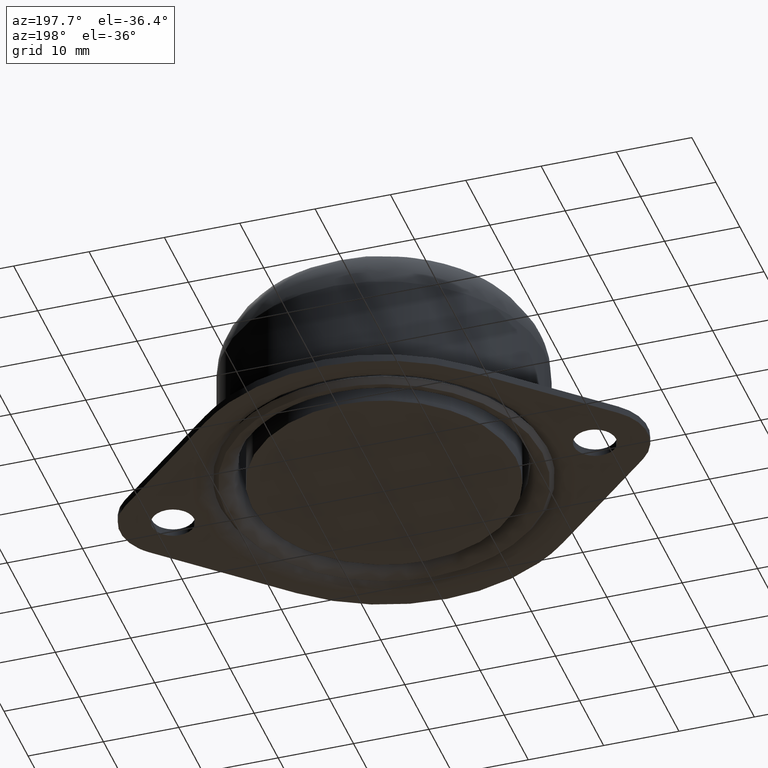
[diagram: clean part render]
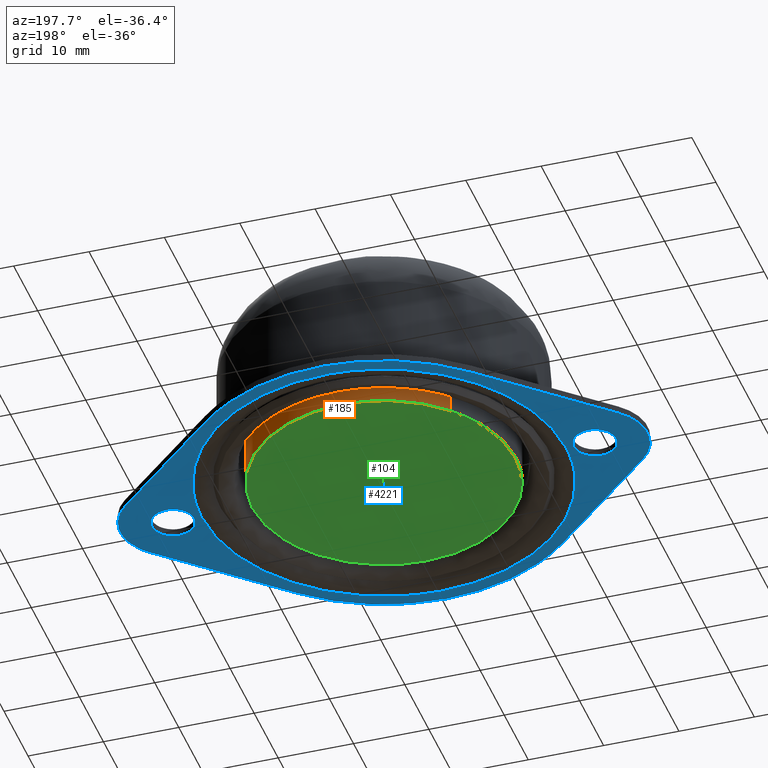
[diagram: same view with three faces highlighted in distinct colors, each labeled with its STEP entity id]
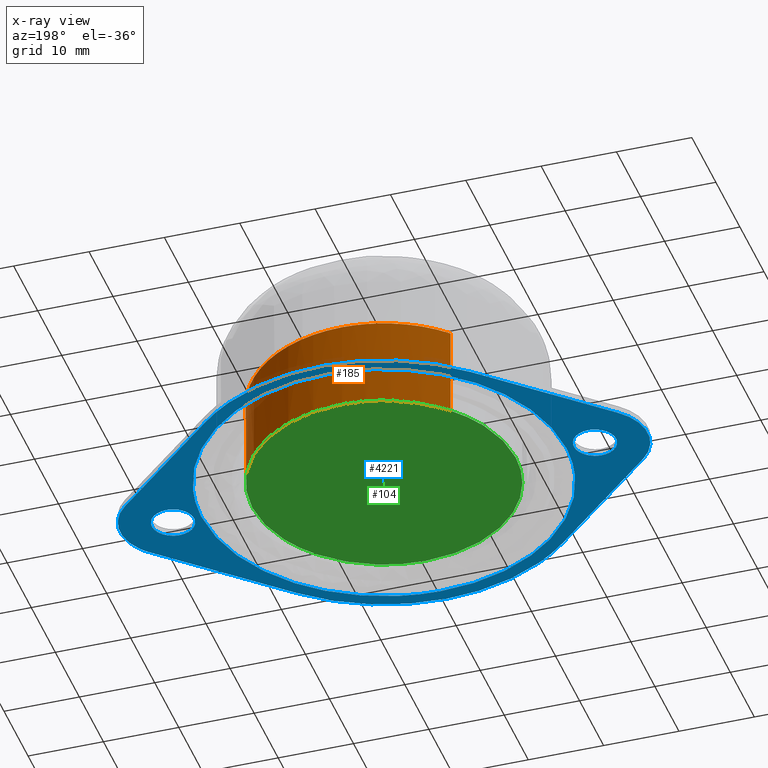
[diagram: x-ray of the same camera — body ghosted, the three highlighted faces saturated]
A machine part, auxiliary view with three faces highlighted in distinct colors.
The next image is the same camera in x-ray (body ghosted, the three faces saturated) — at least one of them is partly hidden behind the body in this view.
Their STEP definitions:

[orange] entity #185 — the highlighted face is a freeform B-spline surface patch.
#12=CARTESIAN_POINT('',(-12.694051327432490,12.046204874001370,5.828671E-016));
#13=VERTEX_POINT('',#12);
#25=CARTESIAN_POINT('',(0.000001033427138,17.499999999999972,0.0));
#26=VERTEX_POINT('',#25);
#27=CARTESIAN_POINT('',(-12.694051327432490,12.046204874001370,5.828671E-016));
#28=CARTESIAN_POINT('',(-11.752260568453350,13.039107217234010,5.396233E-016));
#29=CARTESIAN_POINT('',(-9.948859554140649,14.539835378048240,4.568174E-016));
#30=CARTESIAN_POINT('',(-7.106972295620929,16.072285787799249,3.263277E-016));
#31=CARTESIAN_POINT('',(-4.620652874274859,16.940714410751479,2.121645E-016));
#32=CARTESIAN_POINT('',(-2.256139286595328,17.403714067770341,1.035942E-016));
#33=CARTESIAN_POINT('',(-0.739717127283436,17.500021226958339,3.396531E-017));
#34=CARTESIAN_POINT('',(0.000001033427138,17.499999999999972,0.0));
#35=B_SPLINE_CURVE_WITH_KNOTS('',3,(#27,#28,#29,#30,#31,#32,#33,#34),.UNSPECIFIED.,.F.,.U.,(4,1,1,1,1,4),(0.000000011927836,4.105453774047316,6.990375922248376,9.653353046979401,11.983485024510310,14.202641538438611),.UNSPECIFIED.);
#36=EDGE_CURVE('',#13,#26,#35,.T.);
#38=CARTESIAN_POINT('',(17.500000000000000,0.0,0.0));
#39=VERTEX_POINT('',#38);
#40=CARTESIAN_POINT('',(0.000001033427138,17.499999999999972,0.0));
#41=CARTESIAN_POINT('',(1.252772707341418,17.500219680099491,0.0));
#42=CARTESIAN_POINT('',(2.934943339411730,17.318589445070529,0.0));
#43=CARTESIAN_POINT('',(5.224454752584814,16.730059737281429,0.0));
#44=CARTESIAN_POINT('',(7.146565655771744,16.035736934902939,0.0));
#45=CARTESIAN_POINT('',(9.211645343327193,14.948171580682770,0.0));
#46=CARTESIAN_POINT('',(10.926345950599170,13.708705878859449,0.0));
#47=CARTESIAN_POINT('',(12.344740718381130,12.446735459282880,0.0));
#48=CARTESIAN_POINT('',(13.508486076899750,11.178472565326890,0.0));
#49=CARTESIAN_POINT('',(14.656298320537511,9.620844931467456,0.0));
#50=CARTESIAN_POINT('',(15.708952071699850,7.827436663531470,0.0));
#51=CARTESIAN_POINT('',(16.712554314363409,5.446183268579699,0.0));
#52=CARTESIAN_POINT('',(17.360096668815871,2.756051201541911,0.0));
#53=CARTESIAN_POINT('',(17.500031975590190,0.859026314473732,0.0));
#54=CARTESIAN_POINT('',(17.500000000000000,0.0,0.0));
#55=B_SPLINE_CURVE_WITH_KNOTS('',3,(#40,#41,#42,#43,#44,#45,#46,#47,#48,#49,#50,#51,#52,#53,#54),.UNSPECIFIED.,.F.,.U.,(4,1,1,1,1,1,1,1,1,1,1,1,4),(0.000000042728939,3.758250911907684,5.046796289399147,7.087003583543876,9.878866169585820,12.026451671538760,13.422368371253549,15.569927406255470,17.180594418582650,19.220802072987770,21.797902057186018,24.911893883550160,27.488978258615141),.UNSPECIFIED.);
#56=EDGE_CURVE('',#26,#39,#55,.T.);
#58=CARTESIAN_POINT('',(12.694051327432540,-12.046204874001431,-1.387779E-016));
#59=VERTEX_POINT('',#58);
#60=CARTESIAN_POINT('',(17.500000000000000,0.0,0.0));
#61=CARTESIAN_POINT('',(17.500068162512360,-0.934198816098275,-1.076240E-017));
#62=CARTESIAN_POINT('',(17.380567280991801,-2.421966867251283,-2.790218E-017));
#63=CARTESIAN_POINT('',(16.916501264523529,-4.625141459918753,-5.328378E-017));
#64=CARTESIAN_POINT('',(16.261513535659400,-6.599753303630797,-7.603222E-017));
#65=CARTESIAN_POINT('',(15.385335928593280,-8.409912941714817,-9.688611E-017));
#66=CARTESIAN_POINT('',(14.230974684070160,-10.261173516164719,-1.182135E-016));
#67=CARTESIAN_POINT('',(13.337166314188570,-11.368610605760660,-1.309717E-016));
#68=CARTESIAN_POINT('',(12.694051327432540,-12.046204874001431,-1.387779E-016));
#69=B_SPLINE_CURVE_WITH_KNOTS('',3,(#60,#61,#62,#63,#64,#65,#66,#67,#68),.UNSPECIFIED.,.F.,.U.,(4,1,1,1,1,1,4),(0.000000010627542,2.802585769322469,4.463381717121377,6.746954955061423,9.030553493738333,10.483752518467380,13.286338277160009),.UNSPECIFIED.);
#70=EDGE_CURVE('',#39,#59,#69,.T.);
#105=CARTESIAN_POINT('',(-12.694051492715030,12.046205074640691,12.420664061481601));
#106=CARTESIAN_POINT('',(-0.647846418074339,24.740256567355722,12.420664061481595));
#107=CARTESIAN_POINT('',(12.046205074640691,12.694051492715030,12.420664061481601));
#108=CARTESIAN_POINT('',(24.740256567355722,0.647846418074339,12.420664061481595));
#109=CARTESIAN_POINT('',(12.694051492715030,-12.046205074640691,12.420664061481601));
#110=CARTESIAN_POINT('',(-12.694051492715030,12.046205074640691,-0.310516601537040));
#111=CARTESIAN_POINT('',(-0.647846418074339,24.740256567355722,-0.310516601537040));
#112=CARTESIAN_POINT('',(12.046205074640691,12.694051492715030,-0.310516601537040));
#113=CARTESIAN_POINT('',(24.740256567355722,0.647846418074339,-0.310516601537040));
#114=CARTESIAN_POINT('',(12.694051492715030,-12.046205074640691,-0.310516601537040));
#122=(BOUNDED_SURFACE()B_SPLINE_SURFACE(2,1,((#105,#110),(#106,#111),(#107,#112),(#108,#113),(#109,#114)),.UNSPECIFIED.,.F.,.F.,.U.)B_SPLINE_SURFACE_WITH_KNOTS((3,2,3),(2,2),(0.0,28.994949366116639,57.989898732233293),(0.0,12.731180663018639),.UNSPECIFIED.)GEOMETRIC_REPRESENTATION_ITEM()RATIONAL_B_SPLINE_SURFACE(((1.0,1.0),(0.707106781186548,0.707106781186548),(1.0,1.0),(0.707106781186548,0.707106781186548),(1.0,1.0)))REPRESENTATION_ITEM('')SURFACE());
#123=CARTESIAN_POINT('',(-12.694051327693220,12.046204873726619,12.117721035591090));
#124=VERTEX_POINT('',#123);
#125=CARTESIAN_POINT('',(0.000001033427138,17.499999999999972,12.117721035591799));
#126=VERTEX_POINT('',#125);
#127=CARTESIAN_POINT('',(-12.694051327693220,12.046204873726619,12.117721035591090));
#128=CARTESIAN_POINT('',(-11.828568105886569,12.958545586472260,12.117721035591090));
#129=CARTESIAN_POINT('',(-10.467007893007629,14.113799667104569,12.117721035591281));
#130=CARTESIAN_POINT('',(-8.228248704781693,15.491313931736540,12.117721035591270));
#131=CARTESIAN_POINT('',(-6.108883451037743,16.474495599448979,12.117721035591559));
#132=CARTESIAN_POINT('',(-3.254713107902874,17.292045384144739,12.117721035591600));
#133=CARTESIAN_POINT('',(-1.146577255644431,17.500151577702610,12.117721035591750));
#134=CARTESIAN_POINT('',(0.000001033427138,17.499999999999972,12.117721035591799));
#135=B_SPLINE_CURVE_WITH_KNOTS('',3,(#127,#128,#129,#130,#131,#132,#133,#134),.UNSPECIFIED.,.F.,.U.,(4,1,1,1,1,4),(0.000000011927709,3.772577794645567,5.325999208208918,7.878024945214543,10.762939649561250,14.202641538817391),.UNSPECIFIED.);
#136=EDGE_CURVE('',#124,#126,#135,.T.);
#137=ORIENTED_EDGE('',*,*,#136,.T.);
#138=CARTESIAN_POINT('',(17.500000000000000,0.0,12.117721035591799));
#139=VERTEX_POINT('',#138);
#140=CARTESIAN_POINT('',(0.000001033427138,17.499999999999972,12.117721035591799));
#141=CARTESIAN_POINT('',(1.252766037059787,17.500202968113140,12.117721035591851));
#142=CARTESIAN_POINT('',(3.579219260018999,17.249117559254039,12.117721035591741));
#143=CARTESIAN_POINT('',(6.560378233372870,16.304640666530162,12.117721035591760));
#144=CARTESIAN_POINT('',(9.091859330705638,15.030380572752049,12.117721035591870));
#145=CARTESIAN_POINT('',(11.201501580714350,13.534906971953241,12.117721035591771));
#146=CARTESIAN_POINT('',(12.927290090280680,11.861191233896889,12.117721035591810));
#147=CARTESIAN_POINT('',(14.276190097178240,10.186346232067701,12.117721035591810));
#148=CARTESIAN_POINT('',(15.273821595203049,8.610910680633639,12.117721035591689));
#149=CARTESIAN_POINT('',(16.111998459048831,6.906851367358595,12.117721035591890));
#150=CARTESIAN_POINT('',(16.736493731073431,5.226782197588787,12.117721035591780));
#151=CARTESIAN_POINT('',(17.327175943202210,2.899166122731894,12.117721035591799));
#152=CARTESIAN_POINT('',(17.500149746757209,1.145380387572148,12.117721035591810));
#153=CARTESIAN_POINT('',(17.500000000000000,0.0,12.117721035591799));
#154=B_SPLINE_CURVE_WITH_KNOTS('',3,(#140,#141,#142,#143,#144,#145,#146,#147,#148,#149,#150,#151,#152,#153),.UNSPECIFIED.,.F.,.U.,(4,1,1,1,1,1,1,1,1,1,1,4),(0.000000042728939,3.758250911907684,6.979623902986432,9.341962381888251,12.241187606077530,14.710871745039210,16.536321636131731,18.683910429791801,20.294595658058100,22.227421131201169,24.052872990432711,27.488978258615141),.UNSPECIFIED.);
#155=EDGE_CURVE('',#126,#139,#154,.T.);
#156=ORIENTED_EDGE('',*,*,#155,.T.);
#157=CARTESIAN_POINT('',(12.694051327693280,-12.046204873726669,12.117721035591090));
#158=VERTEX_POINT('',#157);
#159=CARTESIAN_POINT('',(17.500000000000000,0.0,12.117721035591799));
#160=CARTESIAN_POINT('',(17.500305731980600,-1.384021408940835,12.117721035591760));
#161=CARTESIAN_POINT('',(17.231776733268621,-3.632852231095188,12.117721035591529));
#162=CARTESIAN_POINT('',(16.391856237061798,-6.241907495474901,12.117721035591490));
#163=CARTESIAN_POINT('',(15.545583252880871,-8.101549707040428,12.117721035591300));
#164=CARTESIAN_POINT('',(14.445684189471541,-9.987936088710809,12.117721035591220));
#165=CARTESIAN_POINT('',(13.384810281809330,-11.318426463105601,12.117721035591130));
#166=CARTESIAN_POINT('',(12.694051327693280,-12.046204873726669,12.117721035591090));
#167=B_SPLINE_CURVE_WITH_KNOTS('',3,(#159,#160,#161,#162,#163,#164,#165,#166),.UNSPECIFIED.,.F.,.U.,(4,1,1,1,1,4),(0.000000010622809,4.151982605868518,6.746954954867281,8.200158782150698,10.276153789700039,13.286338276781230),.UNSPECIFIED.);
#168=EDGE_CURVE('',#139,#158,#167,.T.);
#169=ORIENTED_EDGE('',*,*,#168,.T.);
#170=CARTESIAN_POINT('',(12.694051327693280,-12.046204873726669,12.117721035591090));
#171=CARTESIAN_POINT('',(12.694051327432540,-12.046204874001431,-1.387779E-016));
#172=QUASI_UNIFORM_CURVE('',1,(#170,#171),.UNSPECIFIED.,.F.,.U.);
#173=EDGE_CURVE('',#158,#59,#172,.T.);
#174=ORIENTED_EDGE('',*,*,#173,.T.);
#175=ORIENTED_EDGE('',*,*,#70,.F.);
#176=ORIENTED_EDGE('',*,*,#56,.F.);
#177=ORIENTED_EDGE('',*,*,#36,.F.);
#178=CARTESIAN_POINT('',(-12.694051327693220,12.046204873726619,12.117721035591090));
#179=CARTESIAN_POINT('',(-12.694051327432490,12.046204874001370,5.828671E-016));
#180=QUASI_UNIFORM_CURVE('',1,(#178,#179),.UNSPECIFIED.,.F.,.U.);
#181=EDGE_CURVE('',#124,#13,#180,.T.);
#182=ORIENTED_EDGE('',*,*,#181,.F.);
#183=EDGE_LOOP('',(#137,#156,#169,#174,#175,#176,#177,#182));
#184=FACE_OUTER_BOUND('',#183,.T.);
#185=ADVANCED_FACE('',(#184),#122,.T.);

[blue] entity #4221 — the highlighted face is a freeform B-spline surface patch.
#2745=CARTESIAN_POINT('',(30.031048039653999,-1.927392715186020,1.239838E-011));
#2746=VERTEX_POINT('',#2745);
#2747=CARTESIAN_POINT('',(27.999999154508799,-2.799999999999872,0.0));
#2748=VERTEX_POINT('',#2747);
#2749=CARTESIAN_POINT('',(30.031048039653999,-1.927392715186020,1.239838E-011));
#2750=CARTESIAN_POINT('',(29.843740515910579,-2.124946597109745,1.125497E-011));
#2751=CARTESIAN_POINT('',(29.448523690532561,-2.435085087135668,8.842404E-012));
#2752=CARTESIAN_POINT('',(28.745589806583560,-2.731824886602429,4.551400E-012));
#2753=CARTESIAN_POINT('',(28.260390812198239,-2.800086189192340,1.589541E-012));
#2754=CARTESIAN_POINT('',(27.999999154508799,-2.799999999999872,0.0));
#2755=B_SPLINE_CURVE_WITH_KNOTS('',3,(#2749,#2750,#2751,#2752,#2753,#2754),.UNSPECIFIED.,.F.,.U.,(4,1,1,4),(0.000000026224772,0.816662739139582,1.491283893432271,2.272434603819845),.UNSPECIFIED.);
#2756=EDGE_CURVE('',#2746,#2748,#2755,.T.);
#2758=CARTESIAN_POINT('',(25.199999999999999,0.0,0.0));
#2759=VERTEX_POINT('',#2758);
#2760=CARTESIAN_POINT('',(27.999999154508799,-2.799999999999872,0.0));
#2761=CARTESIAN_POINT('',(27.644883335062651,-2.800350475097636,0.0));
#2762=CARTESIAN_POINT('',(27.038093452136081,-2.682910364221622,0.0));
#2763=CARTESIAN_POINT('',(26.334143108095780,-2.284055815763501,0.0));
#2764=CARTESIAN_POINT('',(25.889561434436761,-1.865861166363240,0.0));
#2765=CARTESIAN_POINT('',(25.579808203963172,-1.437277321139067,0.0));
#2766=CARTESIAN_POINT('',(25.290719681295069,-0.835977811623909,0.0));
#2767=CARTESIAN_POINT('',(25.199780233864018,-0.332192747762233,0.0));
#2768=CARTESIAN_POINT('',(25.199999999999999,0.0,0.0));
#2769=B_SPLINE_CURVE_WITH_KNOTS('',3,(#2760,#2761,#2762,#2763,#2764,#2765,#2766,#2767,#2768),.UNSPECIFIED.,.F.,.U.,(4,1,1,1,1,1,4),(0.000000098548063,1.065202498120565,1.821171744755202,2.405270912355896,2.886345147545586,3.401779459272843,4.398256835523368),.UNSPECIFIED.);
#2770=EDGE_CURVE('',#2748,#2759,#2769,.T.);
#2772=CARTESIAN_POINT('',(25.968951960346001,1.927392715186019,1.239826E-011));
#2773=VERTEX_POINT('',#2772);
#2774=CARTESIAN_POINT('',(25.199999999999999,0.0,0.0));
#2775=CARTESIAN_POINT('',(25.199991060435352,0.166078021723810,1.068323E-012));
#2776=CARTESIAN_POINT('',(25.232588271740202,0.531442820791804,3.418591E-012));
#2777=CARTESIAN_POINT('',(25.432674409727991,1.215450841064613,7.818582E-012));
#2778=CARTESIAN_POINT('',(25.732425131164529,1.678593488117422,1.079782E-011));
#2779=CARTESIAN_POINT('',(25.968951960346001,1.927392715186019,1.239826E-011));
#2780=B_SPLINE_CURVE_WITH_KNOTS('',3,(#2774,#2775,#2776,#2777,#2778,#2779),.UNSPECIFIED.,.F.,.U.,(4,1,1,4),(0.000000023949822,0.498239701473426,1.096112349535571,2.125823479901019),.UNSPECIFIED.);
#2781=EDGE_CURVE('',#2759,#2773,#2780,.T.);
#2852=CARTESIAN_POINT('',(30.800000000000001,0.0,0.0));
#2853=VERTEX_POINT('',#2852);
#2854=CARTESIAN_POINT('',(30.800000000000001,0.0,0.0));
#2855=CARTESIAN_POINT('',(30.800011651768450,-0.166078550991764,1.068337E-012));
#2856=CARTESIAN_POINT('',(30.767396664123471,-0.531437408703739,3.418588E-012));
#2857=CARTESIAN_POINT('',(30.567359776526420,-1.215466797623307,7.818757E-012));
#2858=CARTESIAN_POINT('',(30.267547100021130,-1.678578523538131,1.079783E-011));
#2859=CARTESIAN_POINT('',(30.031048039653999,-1.927392715186020,1.239838E-011));
#2860=B_SPLINE_CURVE_WITH_KNOTS('',3,(#2854,#2855,#2856,#2857,#2858,#2859),.UNSPECIFIED.,.F.,.U.,(4,1,1,4),(0.000000023951221,0.498239701474330,1.096112349535941,2.125823479901019),.UNSPECIFIED.);
#2861=EDGE_CURVE('',#2853,#2746,#2860,.T.);
#2899=CARTESIAN_POINT('',(28.000000845491218,2.799999999999872,0.0));
#2900=VERTEX_POINT('',#2899);
#2901=CARTESIAN_POINT('',(25.968951960346001,1.927392715186019,1.239826E-011));
#2902=CARTESIAN_POINT('',(26.148120549592161,2.116352447358087,1.130455E-011));
#2903=CARTESIAN_POINT('',(26.456824760195570,2.361741135176130,9.420109E-012));
#2904=CARTESIAN_POINT('',(26.987630554205101,2.626636584075357,6.179877E-012));
#2905=CARTESIAN_POINT('',(27.467396400555291,2.767354544982390,3.251212E-012));
#2906=CARTESIAN_POINT('',(27.834304449405771,2.800011759845107,1.011471E-012));
#2907=CARTESIAN_POINT('',(28.000000845491218,2.799999999999872,0.0));
#2908=B_SPLINE_CURVE_WITH_KNOTS('',3,(#2901,#2902,#2903,#2904,#2905,#2906,#2907),.UNSPECIFIED.,.F.,.U.,(4,1,1,1,4),(0.000000026225792,0.781150338729053,1.171709510278310,1.775341132132759,2.272434603819858),.UNSPECIFIED.);
#2909=EDGE_CURVE('',#2773,#2900,#2908,.T.);
#2911=CARTESIAN_POINT('',(28.000000845491218,2.799999999999872,0.0));
#2912=CARTESIAN_POINT('',(28.274899713935561,2.800108221946402,0.0));
#2913=CARTESIAN_POINT('',(28.801701544830479,2.721782682552250,0.0));
#2914=CARTESIAN_POINT('',(29.547877516524721,2.380123426296433,0.0));
#2915=CARTESIAN_POINT('',(30.071579082011819,1.922719231740108,0.0));
#2916=CARTESIAN_POINT('',(30.438536831968548,1.408186841094348,0.0));
#2917=CARTESIAN_POINT('',(30.715611340586388,0.813106063968280,0.0));
#2918=CARTESIAN_POINT('',(30.800208439692899,0.309278637945049,0.0));
#2919=CARTESIAN_POINT('',(30.800000000000001,0.0,0.0));
#2920=B_SPLINE_CURVE_WITH_KNOTS('',3,(#2911,#2912,#2913,#2914,#2915,#2916,#2917,#2918,#2919),.UNSPECIFIED.,.F.,.U.,(4,1,1,1,1,1,4),(0.000000098573376,0.824665699015917,1.580635255141353,2.439657106825410,2.886345147554612,3.470503028095011,4.398256835523259),.UNSPECIFIED.);
#2921=EDGE_CURVE('',#2900,#2853,#2920,.T.);
#2944=CARTESIAN_POINT('',(-25.968951960346001,-1.927392715186022,1.239838E-011));
#2945=VERTEX_POINT('',#2944);
#2946=CARTESIAN_POINT('',(-28.000000845491201,-2.799999999999872,0.0));
#2947=VERTEX_POINT('',#2946);
#2948=CARTESIAN_POINT('',(-25.968951960346001,-1.927392715186022,1.239838E-011));
#2949=CARTESIAN_POINT('',(-26.083003341023058,-2.047590196936136,1.170216E-011));
#2950=CARTESIAN_POINT('',(-26.359249074610371,-2.291264282499584,1.001584E-011));
#2951=CARTESIAN_POINT('',(-26.791577391536169,-2.542401610766930,7.376726E-012));
#2952=CARTESIAN_POINT('',(-27.349104281413169,-2.745093363348257,3.973347E-012));
#2953=CARTESIAN_POINT('',(-27.739603052787221,-2.800111691537663,1.589578E-012));
#2954=CARTESIAN_POINT('',(-28.000000845491201,-2.799999999999872,0.0));
#2955=B_SPLINE_CURVE_WITH_KNOTS('',3,(#2948,#2949,#2950,#2951,#2952,#2953,#2954),.UNSPECIFIED.,.F.,.U.,(4,1,1,1,4),(0.000000026222973,0.497093717521525,1.100725022460585,1.491283893432272,2.272434603819845),.UNSPECIFIED.);
#2956=EDGE_CURVE('',#2945,#2947,#2955,.T.);
#2958=CARTESIAN_POINT('',(-30.800000000000001,0.0,0.0));
#2959=VERTEX_POINT('',#2958);
#2960=CARTESIAN_POINT('',(-28.000000845491201,-2.799999999999872,0.0));
#2961=CARTESIAN_POINT('',(-28.355119487596269,-2.800351157323797,0.0));
#2962=CARTESIAN_POINT('',(-28.961893965066800,-2.682897841856384,0.0));
#2963=CARTESIAN_POINT('',(-29.736292755341889,-2.244208654907654,0.0));
#2964=CARTESIAN_POINT('',(-30.237625426202769,-1.730423854099129,0.0));
#2965=CARTESIAN_POINT('',(-30.556273996539410,-1.183454946457047,0.0));
#2966=CARTESIAN_POINT('',(-30.750513241014559,-0.629925620482051,0.0));
#2967=CARTESIAN_POINT('',(-30.800060054805819,-0.229077006390447,0.0));
#2968=CARTESIAN_POINT('',(-30.800000000000001,0.0,0.0));
#2969=B_SPLINE_CURVE_WITH_KNOTS('',3,(#2960,#2961,#2962,#2963,#2964,#2965,#2966,#2967,#2968),.UNSPECIFIED.,.F.,.U.,(4,1,1,1,1,1,4),(0.000000098570556,1.065202498139127,1.821171744770200,2.645807579460606,3.195605844278639,3.711040155849163,4.398256835523267),.UNSPECIFIED.);
#2970=EDGE_CURVE('',#2947,#2959,#2969,.T.);
#2972=CARTESIAN_POINT('',(-30.031048039653999,1.927392715186018,1.239838E-011));
#2973=VERTEX_POINT('',#2972);
#2974=CARTESIAN_POINT('',(-30.800000000000001,0.0,0.0));
#2975=CARTESIAN_POINT('',(-30.800018109811869,0.188221688338830,1.210777E-012));
#2976=CARTESIAN_POINT('',(-30.757445649189080,0.608955522340540,3.917240E-012));
#2977=CARTESIAN_POINT('',(-30.528665356054908,1.285427458173213,8.268795E-012));
#2978=CARTESIAN_POINT('',(-30.229296008810980,1.718653992274438,1.105562E-011));
#2979=CARTESIAN_POINT('',(-30.031048039653999,1.927392715186018,1.239838E-011));
#2980=B_SPLINE_CURVE_WITH_KNOTS('',3,(#2974,#2975,#2976,#2977,#2978,#2979),.UNSPECIFIED.,.F.,.U.,(4,1,1,4),(0.000000023949207,0.564672074401947,1.262201367905090,2.125823479901017),.UNSPECIFIED.);
#2981=EDGE_CURVE('',#2959,#2973,#2980,.T.);
#3053=CARTESIAN_POINT('',(-25.199999999999999,0.0,0.0));
#3054=VERTEX_POINT('',#3053);
#3055=CARTESIAN_POINT('',(-25.199999999999999,0.0,0.0));
#3056=CARTESIAN_POINT('',(-25.199975822922841,-0.188224955851062,1.210798E-012));
#3057=CARTESIAN_POINT('',(-25.238099659955829,-0.564655765160104,3.632272E-012));
#3058=CARTESIAN_POINT('',(-25.450217870622868,-1.244566125362911,8.005945E-012));
#3059=CARTESIAN_POINT('',(-25.740067838426040,-1.686616489015955,1.084953E-011));
#3060=CARTESIAN_POINT('',(-25.968951960346001,-1.927392715186022,1.239838E-011));
#3061=B_SPLINE_CURVE_WITH_KNOTS('',3,(#3055,#3056,#3057,#3058,#3059,#3060),.UNSPECIFIED.,.F.,.U.,(4,1,1,4),(0.000000023949753,0.564672074402416,1.129340220618033,2.125823479901022),.UNSPECIFIED.);
#3062=EDGE_CURVE('',#3054,#2945,#3061,.T.);
#3100=CARTESIAN_POINT('',(-27.999999154508789,2.799999999999872,0.0));
#3101=VERTEX_POINT('',#3100);
#3102=CARTESIAN_POINT('',(-30.031048039653999,1.927392715186018,1.239838E-011));
#3103=CARTESIAN_POINT('',(-29.868150298986730,2.099145294745589,1.140398E-011));
#3104=CARTESIAN_POINT('',(-29.535401577656689,2.370714925235468,9.372743E-012));
#3105=CARTESIAN_POINT('',(-28.851997877886799,2.706400653001903,5.200959E-012));
#3106=CARTESIAN_POINT('',(-28.331443175171270,2.800277964099223,2.023274E-012));
#3107=CARTESIAN_POINT('',(-27.999999154508789,2.799999999999872,0.0));
#3108=B_SPLINE_CURVE_WITH_KNOTS('',3,(#3102,#3103,#3104,#3105,#3106,#3107),.UNSPECIFIED.,.F.,.U.,(4,1,1,4),(0.000000026223574,0.710137817113629,1.278233098241917,2.272434603819857),.UNSPECIFIED.);
#3109=EDGE_CURVE('',#2973,#3101,#3108,.T.);
#3111=CARTESIAN_POINT('',(-27.999999154508789,2.799999999999872,0.0));
#3112=CARTESIAN_POINT('',(-27.690724252621528,2.800189119311187,0.0));
#3113=CARTESIAN_POINT('',(-27.141079284342240,2.707959491169661,0.0));
#3114=CARTESIAN_POINT('',(-26.437424074776199,2.359173435847647,0.0));
#3115=CARTESIAN_POINT('',(-25.939381920456430,1.929483463386294,0.0));
#3116=CARTESIAN_POINT('',(-25.562300418716742,1.421052165552399,0.0));
#3117=CARTESIAN_POINT('',(-25.277986109779619,0.790245299074178,0.0));
#3118=CARTESIAN_POINT('',(-25.199874964057280,0.286353944472991,0.0));
#3119=CARTESIAN_POINT('',(-25.199999999999999,0.0,0.0));
#3120=B_SPLINE_CURVE_WITH_KNOTS('',3,(#3111,#3112,#3113,#3114,#3115,#3116,#3117,#3118,#3119),.UNSPECIFIED.,.F.,.U.,(4,1,1,1,1,1,4),(0.000000098548110,0.927756297414711,1.649354845515874,2.336550673854224,2.886345147545901,3.539225127852387,4.398256835523361),.UNSPECIFIED.);
#3121=EDGE_CURVE('',#3101,#3054,#3120,.T.);
#3700=CARTESIAN_POINT('',(-24.192352355895931,-0.608134940985664,7.180680E-012));
#3701=VERTEX_POINT('',#3700);
#3702=CARTESIAN_POINT('',(-24.199999999999999,0.0,0.0));
#3703=VERTEX_POINT('',#3702);
#3704=CARTESIAN_POINT('',(-24.192352355895931,-0.608134940985664,7.180680E-012));
#3705=CARTESIAN_POINT('',(-24.197448742052160,-0.405467626336486,4.787265E-012));
#3706=CARTESIAN_POINT('',(-24.199998257179431,-0.202731789127019,2.393420E-012));
#3707=CARTESIAN_POINT('',(-24.199999999999999,0.0,0.0));
#3708=B_SPLINE_CURVE_WITH_KNOTS('',3,(#3704,#3705,#3706,#3707),.UNSPECIFIED.,.F.,.U.,(4,4),(9.873158E-012,0.608200032547265),.UNSPECIFIED.);
#3709=EDGE_CURVE('',#3701,#3703,#3708,.T.);
#3711=CARTESIAN_POINT('',(-0.304077431244649,24.198089496612301,3.590374E-012));
#3712=VERTEX_POINT('',#3711);
#3713=CARTESIAN_POINT('',(-24.199999999999999,0.0,0.0));
#3714=CARTESIAN_POINT('',(-24.200156343858080,1.473025898344672,2.723166E-015));
#3715=CARTESIAN_POINT('',(-23.993110660223991,3.731585266079701,3.765191E-014));
#3716=CARTESIAN_POINT('',(-23.238036543260019,6.937510377774040,1.556538E-013));
#3717=CARTESIAN_POINT('',(-22.275906678746040,9.624082934089822,3.034067E-013));
#3718=CARTESIAN_POINT('',(-20.777912061316769,12.560530425096861,5.311277E-013));
#3719=CARTESIAN_POINT('',(-18.883216469426120,15.261503299117360,8.172652E-013));
#3720=CARTESIAN_POINT('',(-16.464049316075940,17.849309073328030,1.181004E-012));
#3721=CARTESIAN_POINT('',(-13.928267639997330,19.883349031369409,1.561011E-012));
#3722=CARTESIAN_POINT('',(-11.269124531270700,21.473884064104880,1.958493E-012));
#3723=CARTESIAN_POINT('',(-8.941098389977075,22.531635479360201,2.305857E-012));
#3724=CARTESIAN_POINT('',(-6.380167968093918,23.397525878753591,2.687417E-012));
#3725=CARTESIAN_POINT('',(-3.542620939811005,24.012497854689698,3.109550E-012));
#3726=CARTESIAN_POINT('',(-1.384200319135533,24.184560120599290,3.430099E-012));
#3727=CARTESIAN_POINT('',(-0.304077431244649,24.198089496612301,3.590374E-012));
#3728=B_SPLINE_CURVE_WITH_KNOTS('',3,(#3713,#3714,#3715,#3716,#3717,#3718,#3719,#3720,#3721,#3722,#3723,#3724,#3725,#3726,#3727),.UNSPECIFIED.,.F.,.U.,(4,1,1,1,1,1,1,1,1,1,1,1,4),(0.000000027844123,4.419043344339876,6.775879425266300,9.869218045061555,12.962566316563869,16.645118915805039,19.738426036513768,23.568278157147780,26.367007611060480,29.018444964098119,31.227974385950368,34.468622362439547,37.709244984538742),.UNSPECIFIED.);
#3729=EDGE_CURVE('',#3703,#3712,#3728,.T.);
#3731=CARTESIAN_POINT('',(24.192352355895920,0.608134940985659,7.180743E-012));
#3732=VERTEX_POINT('',#3731);
#3733=CARTESIAN_POINT('',(-0.304077431244649,24.198089496612301,3.590374E-012));
#3734=CARTESIAN_POINT('',(0.874237108919771,24.212961246541539,3.765219E-012));
#3735=CARTESIAN_POINT('',(2.889029981023403,24.090854392536329,4.063911E-012));
#3736=CARTESIAN_POINT('',(5.740198277075834,23.556520326848720,4.485921E-012));
#3737=CARTESIAN_POINT('',(8.518880498207265,22.722000930622851,4.896618E-012));
#3738=CARTESIAN_POINT('',(11.216519963282540,21.518591822878619,5.294602E-012));
#3739=CARTESIAN_POINT('',(14.155737124742121,19.726996315711499,5.727332E-012));
#3740=CARTESIAN_POINT('',(16.593283478861039,17.725762977494352,6.085241E-012));
#3741=CARTESIAN_POINT('',(18.889569599792232,15.227809508305500,6.421266E-012));
#3742=CARTESIAN_POINT('',(20.630713500532970,12.781736200640941,6.675026E-012));
#3743=CARTESIAN_POINT('',(21.990758693438270,10.217819560427060,6.872025E-012));
#3744=CARTESIAN_POINT('',(23.061655602493278,7.522389432385106,7.025881E-012));
#3745=CARTESIAN_POINT('',(23.895162694978570,4.382562101182305,7.143688E-012));
#3746=CARTESIAN_POINT('',(24.159141215914499,1.933432542296620,7.178286E-012));
#3747=CARTESIAN_POINT('',(24.192352355895920,0.608134940985659,7.180743E-012));
#3748=B_SPLINE_CURVE_WITH_KNOTS('',3,(#3733,#3734,#3735,#3736,#3737,#3738,#3739,#3740,#3741,#3742,#3743,#3744,#3745,#3746,#3747),.UNSPECIFIED.,.F.,.U.,(4,1,1,1,1,1,1,1,1,1,1,1,4),(0.000000027841899,3.535220301395277,6.039365114379031,8.690792748934438,12.226044094763880,14.877466432178080,19.001889195204122,21.653313042404481,25.041273407908879,27.987305647364920,30.344131909746320,33.732085142948463,37.709211460138491),.UNSPECIFIED.);
#3749=EDGE_CURVE('',#3712,#3732,#3748,.T.);
#3814=CARTESIAN_POINT('',(24.199999999999999,0.0,0.0));
#3815=VERTEX_POINT('',#3814);
#3816=CARTESIAN_POINT('',(0.304077431244664,-24.198089496612301,3.590342E-012));
#3817=VERTEX_POINT('',#3816);
#3818=CARTESIAN_POINT('',(24.199999999999999,0.0,0.0));
#3819=CARTESIAN_POINT('',(24.200157077520391,-1.473023551208348,2.723029E-015));
#3820=CARTESIAN_POINT('',(23.970626485300510,-3.977089513576896,4.144508E-014));
#3821=CARTESIAN_POINT('',(23.142141925621502,-7.269307222800328,1.704981E-013));
#3822=CARTESIAN_POINT('',(21.983101377834121,-10.300814038919009,3.481067E-013));
#3823=CARTESIAN_POINT('',(20.512858361709299,-12.978200334610730,5.712255E-013));
#3824=CARTESIAN_POINT('',(18.468376344508961,-15.746794814785121,8.797090E-013));
#3825=CARTESIAN_POINT('',(16.280903200982401,-18.016540651874610,1.208477E-012));
#3826=CARTESIAN_POINT('',(13.678345286167101,-20.039745011634508,1.598367E-012));
#3827=CARTESIAN_POINT('',(11.267689403217879,-21.471764916743631,1.958685E-012));
#3828=CARTESIAN_POINT('',(8.671861456132024,-22.651222935514831,2.346004E-012));
#3829=CARTESIAN_POINT('',(6.282375884716601,-23.418788724700459,2.701942E-012));
#3830=CARTESIAN_POINT('',(3.395347783627090,-24.016957782556108,3.131380E-012));
#3831=CARTESIAN_POINT('',(1.531492970542925,-24.182734737404040,3.408213E-012));
#3832=CARTESIAN_POINT('',(0.304077431244664,-24.198089496612301,3.590342E-012));
#3833=B_SPLINE_CURVE_WITH_KNOTS('',3,(#3818,#3819,#3820,#3821,#3822,#3823,#3824,#3825,#3826,#3827,#3828,#3829,#3830,#3831,#3832),.UNSPECIFIED.,.F.,.U.,(4,1,1,1,1,1,1,1,1,1,1,1,4),(0.000000027837302,4.419043344333986,7.512388184283399,10.163822782378480,14.140972206453361,16.645118915801699,20.474939469452000,23.568278157146509,26.514313180775211,28.871141804200121,32.111790410251800,34.026719001949289,37.709244984538742),.UNSPECIFIED.);
#3834=EDGE_CURVE('',#3815,#3817,#3833,.T.);
#3836=CARTESIAN_POINT('',(0.304077431244664,-24.198089496612301,3.590342E-012));
#3837=CARTESIAN_POINT('',(-1.463416571102432,-24.220631602714079,3.852612E-012));
#3838=CARTESIAN_POINT('',(-4.609827169957560,-23.913933392783989,4.318845E-012));
#3839=CARTESIAN_POINT('',(-8.527073823970465,-22.737318467320499,4.897819E-012));
#3840=CARTESIAN_POINT('',(-11.783341747607491,-21.224890926527021,5.378103E-012));
#3841=CARTESIAN_POINT('',(-14.227113672655600,-19.652383439390800,5.737732E-012));
#3842=CARTESIAN_POINT('',(-16.645855554055920,-17.641784809018990,6.092831E-012));
#3843=CARTESIAN_POINT('',(-18.718350001279280,-15.468431728865880,6.396256E-012));
#3844=CARTESIAN_POINT('',(-20.602165007415540,-12.821832513005971,6.670807E-012));
#3845=CARTESIAN_POINT('',(-21.877027188632258,-10.436034480813211,6.855499E-012));
#3846=CARTESIAN_POINT('',(-22.988436566528591,-7.758311698422048,7.015396E-012));
#3847=CARTESIAN_POINT('',(-23.874078192484280,-4.578503229475410,7.140863E-012));
#3848=CARTESIAN_POINT('',(-24.159134053855290,-1.933429736567876,7.178222E-012));
#3849=CARTESIAN_POINT('',(-24.192352355895931,-0.608134940985664,7.180680E-012));
#3850=B_SPLINE_CURVE_WITH_KNOTS('',3,(#3836,#3837,#3838,#3839,#3840,#3841,#3842,#3843,#3844,#3845,#3846,#3847,#3848,#3849),.UNSPECIFIED.,.F.,.U.,(4,1,1,1,1,1,1,1,1,1,1,4),(0.000000027847257,5.302856339912573,9.427303299211133,12.226044094767150,16.055898788972922,18.118111518380619,21.653313042405639,25.041273407909198,27.840003125594802,29.754928940119719,33.732085142948542,37.709211460138548),.UNSPECIFIED.);
#3851=EDGE_CURVE('',#3817,#3701,#3850,.T.);
#3859=CARTESIAN_POINT('',(24.192352355895920,0.608134940985659,7.180743E-012));
#3860=CARTESIAN_POINT('',(24.197448742052149,0.405467626336482,4.787307E-012));
#3861=CARTESIAN_POINT('',(24.199998257179459,0.202731789127017,2.393441E-012));
#3862=CARTESIAN_POINT('',(24.199999999999999,0.0,0.0));
#3863=B_SPLINE_CURVE_WITH_KNOTS('',3,(#3859,#3860,#3861,#3862),.UNSPECIFIED.,.F.,.U.,(4,4),(9.873158E-012,0.608200032547260),.UNSPECIFIED.);
#3864=EDGE_CURVE('',#3732,#3815,#3863,.T.);
#3885=CARTESIAN_POINT('',(17.642862538960550,19.097889973275649,0.0));
#3886=VERTEX_POINT('',#3885);
#3892=CARTESIAN_POINT('',(-17.642862538960451,19.097889973275748,0.0));
#3893=VERTEX_POINT('',#3892);
#3894=CARTESIAN_POINT('',(-17.642862538960451,19.097889973275748,0.0));
#3895=CARTESIAN_POINT('',(-16.715592171591531,19.954602267866441,0.0));
#3896=CARTESIAN_POINT('',(-15.211019245065261,21.153795142941242,0.0));
#3897=CARTESIAN_POINT('',(-12.688513824392800,22.743273507204378,0.0));
#3898=CARTESIAN_POINT('',(-10.018137139526409,24.077097075744870,0.0));
#3899=CARTESIAN_POINT('',(-6.472579615270991,25.288487203257070,0.0));
#3900=CARTESIAN_POINT('',(-2.880209958246315,25.922849025557500,0.0));
#3901=CARTESIAN_POINT('',(0.657538192900724,26.056869761589589,0.0));
#3902=CARTESIAN_POINT('',(3.683383586305125,25.800605256066870,0.0));
#3903=CARTESIAN_POINT('',(6.803131124739315,25.155413646445510,0.0));
#3904=CARTESIAN_POINT('',(9.780726152670566,24.167147652116839,0.0));
#3905=CARTESIAN_POINT('',(12.744335240580851,22.740467092307171,0.0));
#3906=CARTESIAN_POINT('',(15.378464743154140,21.037389812651661,0.0));
#3907=CARTESIAN_POINT('',(16.938123359697169,19.748963443505481,0.0));
#3908=CARTESIAN_POINT('',(17.642862538960550,19.097889973275649,0.0));
#3909=B_SPLINE_CURVE_WITH_KNOTS('',3,(#3894,#3895,#3896,#3897,#3898,#3899,#3900,#3901,#3902,#3903,#3904,#3905,#3906,#3907,#3908),.UNSPECIFIED.,.F.,.U.,(4,1,1,1,1,1,1,1,1,1,1,1,4),(0.000000025827376,3.787350321160893,5.756766502156282,8.938154413641204,12.725517876089670,16.967347548461319,19.845704483380612,23.330095557869381,26.056987023858539,29.389866048282428,32.722748703832380,35.904135245597161,38.782502414946137),.UNSPECIFIED.);
#3910=EDGE_CURVE('',#3893,#3886,#3909,.T.);
#3944=CARTESIAN_POINT('',(32.743372164830006,-5.147855913476600,0.0));
#3945=VERTEX_POINT('',#3944);
#3946=CARTESIAN_POINT('',(17.642862538960451,-19.097889973275699,0.0));
#3947=VERTEX_POINT('',#3946);
#3948=CARTESIAN_POINT('',(32.743372164830006,-5.147855913476600,0.0));
#3949=CARTESIAN_POINT('',(17.642862538960451,-19.097889973275699,0.0));
#3950=QUASI_UNIFORM_CURVE('',1,(#3948,#3949),.UNSPECIFIED.,.F.,.U.);
#3951=EDGE_CURVE('',#3945,#3947,#3950,.T.);
#3989=CARTESIAN_POINT('',(32.743372164830006,5.147855913476600,0.0));
#3990=VERTEX_POINT('',#3989);
#3991=CARTESIAN_POINT('',(32.743372164830006,5.147855913476600,0.0));
#3992=CARTESIAN_POINT('',(33.075713497916347,4.841699382479069,0.0));
#3993=CARTESIAN_POINT('',(33.660606793956042,4.187277219716357,0.0));
#3994=CARTESIAN_POINT('',(34.284976987699856,3.150925471555425,0.0));
#3995=CARTESIAN_POINT('',(34.756526215758953,1.973387346653551,0.0));
#3996=CARTESIAN_POINT('',(35.009547555739033,0.725951295305641,0.0));
#3997=CARTESIAN_POINT('',(35.009503497355468,-0.635197944729863,0.0));
#3998=CARTESIAN_POINT('',(34.802863852995827,-1.765868070932626,0.0));
#3999=CARTESIAN_POINT('',(34.444861965453399,-2.791958887340436,0.0));
#4000=CARTESIAN_POINT('',(33.847640407970047,-3.945824375023452,0.0));
#4001=CARTESIAN_POINT('',(33.208756692226792,-4.719321332746384,0.0));
#4002=CARTESIAN_POINT('',(32.743372164830006,-5.147855913476600,0.0));
#4003=B_SPLINE_CURVE_WITH_KNOTS('',3,(#3991,#3992,#3993,#3994,#3995,#3996,#3997,#3998,#3999,#4000,#4001,#4002),.UNSPECIFIED.,.F.,.U.,(4,1,1,1,1,1,1,1,1,4),(0.000000030388943,1.355596464644311,2.620835819374671,3.614957713572954,5.151330173603271,6.416509622613790,7.681756339313444,8.585505286060290,9.670004131046710,11.567840305860731),.UNSPECIFIED.);
#4004=EDGE_CURVE('',#3990,#3945,#4003,.T.);
#4037=CARTESIAN_POINT('',(17.642862538960550,19.097889973275649,0.0));
#4038=CARTESIAN_POINT('',(32.743372164830006,5.147855913476600,0.0));
#4039=QUASI_UNIFORM_CURVE('',1,(#4037,#4038),.UNSPECIFIED.,.F.,.U.);
#4040=EDGE_CURVE('',#3886,#3990,#4039,.T.);
#4057=CARTESIAN_POINT('',(-32.743372164830006,-5.147855913476609,0.0));
#4058=VERTEX_POINT('',#4057);
#4059=CARTESIAN_POINT('',(-17.642862538959651,-19.097889973274999,0.0));
#4060=VERTEX_POINT('',#4059);
#4061=CARTESIAN_POINT('',(-32.743372164830006,-5.147855913476609,0.0));
#4062=CARTESIAN_POINT('',(-17.642862538959651,-19.097889973274999,0.0));
#4063=QUASI_UNIFORM_CURVE('',1,(#4061,#4062),.UNSPECIFIED.,.F.,.U.);
#4064=EDGE_CURVE('',#4058,#4060,#4063,.T.);
#4102=CARTESIAN_POINT('',(-32.743372164830006,5.147855913476589,0.0));
#4103=VERTEX_POINT('',#4102);
#4104=CARTESIAN_POINT('',(-32.743372164830006,-5.147855913476609,0.0));
#4105=CARTESIAN_POINT('',(-33.031390047360318,-4.882505509722552,0.0));
#4106=CARTESIAN_POINT('',(-33.542262133043081,-4.325566626533031,0.0));
#4107=CARTESIAN_POINT('',(-34.238818680734347,-3.264778578627568,0.0));
#4108=CARTESIAN_POINT('',(-34.797024432626287,-1.921432968777148,0.0));
#4109=CARTESIAN_POINT('',(-35.050621297378093,-0.363654736635482,0.0));
#4110=CARTESIAN_POINT('',(-34.954795120030269,1.117248191653496,0.0));
#4111=CARTESIAN_POINT('',(-34.661246999697347,2.228527893910920,0.0));
#4112=CARTESIAN_POINT('',(-34.214672051228902,3.284235972591130,0.0));
#4113=CARTESIAN_POINT('',(-33.624052928076807,4.236486797370821,0.0));
#4114=CARTESIAN_POINT('',(-33.031379657132703,4.882504164042999,0.0));
#4115=CARTESIAN_POINT('',(-32.743372164830006,5.147855913476589,0.0));
#4116=B_SPLINE_CURVE_WITH_KNOTS('',3,(#4104,#4105,#4106,#4107,#4108,#4109,#4110,#4111,#4112,#4113,#4114,#4115),.UNSPECIFIED.,.F.,.U.,(4,1,1,1,1,1,1,1,1,4),(0.000000030390131,1.174858674964666,2.259343193586622,3.795709068185587,5.512815517910916,6.958768224849187,8.224010323033713,8.947004110289930,10.392992245513540,11.567840305860731),.UNSPECIFIED.);
#4117=EDGE_CURVE('',#4058,#4103,#4116,.T.);
#4150=CARTESIAN_POINT('',(-17.642862538960451,19.097889973275748,0.0));
#4151=CARTESIAN_POINT('',(-32.743372164830006,5.147855913476589,0.0));
#4152=QUASI_UNIFORM_CURVE('',1,(#4150,#4151),.UNSPECIFIED.,.F.,.U.);
#4153=EDGE_CURVE('',#3893,#4103,#4152,.T.);
#4165=CARTESIAN_POINT('',(38.496506778672341,-28.597372213708159,0.0));
#4166=CARTESIAN_POINT('',(-38.496523050740358,-28.597372213708159,0.0));
#4167=CARTESIAN_POINT('',(38.496506778672341,28.597423354493380,0.0));
#4168=CARTESIAN_POINT('',(-38.496523050740372,28.597423354493380,0.0));
#4169=B_SPLINE_SURFACE_WITH_KNOTS('',1,1,((#4165,#4167),(#4166,#4168)),.UNSPECIFIED.,.F.,.F.,.U.,(2,2),(2,2),(0.0,76.993029829412706),(0.0,57.194795568201542),.UNSPECIFIED.);
#4170=ORIENTED_EDGE('',*,*,#3910,.T.);
#4171=ORIENTED_EDGE('',*,*,#4040,.T.);
#4172=ORIENTED_EDGE('',*,*,#4004,.T.);
#4173=ORIENTED_EDGE('',*,*,#3951,.T.);
#4174=CARTESIAN_POINT('',(17.642862538960451,-19.097889973275699,0.0));
#4175=CARTESIAN_POINT('',(16.752672608017839,-19.920313076392912,0.0));
#4176=CARTESIAN_POINT('',(14.738550977255709,-21.535402679716409,0.0));
#4177=CARTESIAN_POINT('',(11.718190507459861,-23.294216260202109,0.0));
#4178=CARTESIAN_POINT('',(8.545963753656746,-24.621237794397668,0.0));
#4179=CARTESIAN_POINT('',(5.576158087180352,-25.464832902824700,0.0));
#4180=CARTESIAN_POINT('',(2.175861810145046,-25.983964393013711,0.0));
#4181=CARTESIAN_POINT('',(-0.962664332328195,-26.047973695105490,0.0));
#4182=CARTESIAN_POINT('',(-3.779312336629481,-25.759710305565140,0.0));
#4183=CARTESIAN_POINT('',(-6.309358162915562,-25.267153321011190,0.0));
#4184=CARTESIAN_POINT('',(-9.313437105082192,-24.366427192032148,0.0));
#4185=CARTESIAN_POINT('',(-12.397382275972500,-22.947693109442731,0.0));
#4186=CARTESIAN_POINT('',(-15.296248161642140,-21.097218630678100,0.0));
#4187=CARTESIAN_POINT('',(-16.863945816119760,-19.817510030676541,0.0));
#4188=CARTESIAN_POINT('',(-17.642862538959651,-19.097889973274999,0.0));
#4189=B_SPLINE_CURVE_WITH_KNOTS('',3,(#4174,#4175,#4176,#4177,#4178,#4179,#4180,#4181,#4182,#4183,#4184,#4185,#4186,#4187,#4188),.UNSPECIFIED.,.F.,.U.,(4,1,1,1,1,1,1,1,1,1,1,1,4),(0.000000025873476,3.635849260047785,7.726195448702132,10.453098131781131,13.937464207304661,16.967347548487531,20.754675762375840,23.330095557888129,25.451014595600331,28.480900440956500,32.722748703839109,35.601139533101502,38.782502414945533),.UNSPECIFIED.);
#4190=EDGE_CURVE('',#3947,#4060,#4189,.T.);
#4191=ORIENTED_EDGE('',*,*,#4190,.T.);
#4192=ORIENTED_EDGE('',*,*,#4064,.F.);
#4193=ORIENTED_EDGE('',*,*,#4117,.T.);
#4194=ORIENTED_EDGE('',*,*,#4153,.F.);
#4195=EDGE_LOOP('',(#4170,#4171,#4172,#4173,#4191,#4192,#4193,#4194));
#4196=FACE_OUTER_BOUND('',#4195,.T.);
#4197=ORIENTED_EDGE('',*,*,#3864,.F.);
#4198=ORIENTED_EDGE('',*,*,#3749,.F.);
#4199=ORIENTED_EDGE('',*,*,#3729,.F.);
#4200=ORIENTED_EDGE('',*,*,#3709,.F.);
#4201=ORIENTED_EDGE('',*,*,#3851,.F.);
#4202=ORIENTED_EDGE('',*,*,#3834,.F.);
#4203=EDGE_LOOP('',(#4197,#4198,#4199,#4200,#4201,#4202));
#4204=FACE_BOUND('',#4203,.T.);
#4205=ORIENTED_EDGE('',*,*,#2970,.F.);
#4206=ORIENTED_EDGE('',*,*,#2956,.F.);
#4207=ORIENTED_EDGE('',*,*,#3062,.F.);
#4208=ORIENTED_EDGE('',*,*,#3121,.F.);
#4209=ORIENTED_EDGE('',*,*,#3109,.F.);
#4210=ORIENTED_EDGE('',*,*,#2981,.F.);
#4211=EDGE_LOOP('',(#4205,#4206,#4207,#4208,#4209,#4210));
#4212=FACE_BOUND('',#4211,.T.);
#4213=ORIENTED_EDGE('',*,*,#2770,.F.);
#4214=ORIENTED_EDGE('',*,*,#2756,.F.);
#4215=ORIENTED_EDGE('',*,*,#2861,.F.);
#4216=ORIENTED_EDGE('',*,*,#2921,.F.);
#4217=ORIENTED_EDGE('',*,*,#2909,.F.);
#4218=ORIENTED_EDGE('',*,*,#2781,.F.);
#4219=EDGE_LOOP('',(#4213,#4214,#4215,#4216,#4217,#4218));
#4220=FACE_BOUND('',#4219,.T.);
#4221=ADVANCED_FACE('',(#4196,#4204,#4212,#4220),#4169,.T.);

[green] entity #104 — the highlighted face is a freeform B-spline surface patch.
#5=CARTESIAN_POINT('',(19.248249932163208,-19.248249932163169,0.0));
#6=CARTESIAN_POINT('',(-19.248250870936360,-19.248249932163169,0.0));
#7=CARTESIAN_POINT('',(19.248249932163208,19.248250870936332,0.0));
#8=CARTESIAN_POINT('',(-19.248250870936360,19.248250870936332,0.0));
#9=B_SPLINE_SURFACE_WITH_KNOTS('',1,1,((#5,#7),(#6,#8)),.UNSPECIFIED.,.F.,.F.,.U.,(2,2),(2,2),(0.0,38.496500803099579),(0.0,38.496500803099501),.UNSPECIFIED.);
#10=CARTESIAN_POINT('',(-17.500000000000000,0.0,0.0));
#11=VERTEX_POINT('',#10);
#12=CARTESIAN_POINT('',(-12.694051327432490,12.046204874001370,5.828671E-016));
#13=VERTEX_POINT('',#12);
#14=CARTESIAN_POINT('',(-17.500000000000000,0.0,0.0));
#15=CARTESIAN_POINT('',(-17.500097921299901,1.038000629314138,5.022465E-017));
#16=CARTESIAN_POINT('',(-17.348700949792079,2.733354832798286,1.322560E-016));
#17=CARTESIAN_POINT('',(-16.825705987317122,4.924352701778695,2.382695E-016));
#18=CARTESIAN_POINT('',(-16.044591424236270,7.146520504198992,3.457912E-016));
#19=CARTESIAN_POINT('',(-14.767979127236361,9.578265658772562,4.634535E-016));
#20=CARTESIAN_POINT('',(-13.408616985321499,11.293324083094030,5.464382E-016));
#21=CARTESIAN_POINT('',(-12.694051327432490,12.046204874001370,5.828671E-016));
#22=B_SPLINE_CURVE_WITH_KNOTS('',3,(#14,#15,#16,#17,#18,#19,#20,#21),.UNSPECIFIED.,.F.,.U.,(4,1,1,1,1,4),(0.000000010626566,3.113985082764950,5.086179505407156,6.746954955061219,10.172353205023679,13.286338277159970),.UNSPECIFIED.);
#23=EDGE_CURVE('',#11,#13,#22,.T.);
#24=ORIENTED_EDGE('',*,*,#23,.T.);
#25=CARTESIAN_POINT('',(0.000001033427138,17.499999999999972,0.0));
#26=VERTEX_POINT('',#25);
#27=CARTESIAN_POINT('',(-12.694051327432490,12.046204874001370,5.828671E-016));
#28=CARTESIAN_POINT('',(-11.752260568453350,13.039107217234010,5.396233E-016));
#29=CARTESIAN_POINT('',(-9.948859554140649,14.539835378048240,4.568174E-016));
#30=CARTESIAN_POINT('',(-7.106972295620929,16.072285787799249,3.263277E-016));
#31=CARTESIAN_POINT('',(-4.620652874274859,16.940714410751479,2.121645E-016));
#32=CARTESIAN_POINT('',(-2.256139286595328,17.403714067770341,1.035942E-016));
#33=CARTESIAN_POINT('',(-0.739717127283436,17.500021226958339,3.396531E-017));
#34=CARTESIAN_POINT('',(0.000001033427138,17.499999999999972,0.0));
#35=B_SPLINE_CURVE_WITH_KNOTS('',3,(#27,#28,#29,#30,#31,#32,#33,#34),.UNSPECIFIED.,.F.,.U.,(4,1,1,1,1,4),(0.000000011927836,4.105453774047316,6.990375922248376,9.653353046979401,11.983485024510310,14.202641538438611),.UNSPECIFIED.);
#36=EDGE_CURVE('',#13,#26,#35,.T.);
#37=ORIENTED_EDGE('',*,*,#36,.T.);
#38=CARTESIAN_POINT('',(17.500000000000000,0.0,0.0));
#39=VERTEX_POINT('',#38);
#40=CARTESIAN_POINT('',(0.000001033427138,17.499999999999972,0.0));
#41=CARTESIAN_POINT('',(1.252772707341418,17.500219680099491,0.0));
#42=CARTESIAN_POINT('',(2.934943339411730,17.318589445070529,0.0));
#43=CARTESIAN_POINT('',(5.224454752584814,16.730059737281429,0.0));
#44=CARTESIAN_POINT('',(7.146565655771744,16.035736934902939,0.0));
#45=CARTESIAN_POINT('',(9.211645343327193,14.948171580682770,0.0));
#46=CARTESIAN_POINT('',(10.926345950599170,13.708705878859449,0.0));
#47=CARTESIAN_POINT('',(12.344740718381130,12.446735459282880,0.0));
#48=CARTESIAN_POINT('',(13.508486076899750,11.178472565326890,0.0));
#49=CARTESIAN_POINT('',(14.656298320537511,9.620844931467456,0.0));
#50=CARTESIAN_POINT('',(15.708952071699850,7.827436663531470,0.0));
#51=CARTESIAN_POINT('',(16.712554314363409,5.446183268579699,0.0));
#52=CARTESIAN_POINT('',(17.360096668815871,2.756051201541911,0.0));
#53=CARTESIAN_POINT('',(17.500031975590190,0.859026314473732,0.0));
#54=CARTESIAN_POINT('',(17.500000000000000,0.0,0.0));
#55=B_SPLINE_CURVE_WITH_KNOTS('',3,(#40,#41,#42,#43,#44,#45,#46,#47,#48,#49,#50,#51,#52,#53,#54),.UNSPECIFIED.,.F.,.U.,(4,1,1,1,1,1,1,1,1,1,1,1,4),(0.000000042728939,3.758250911907684,5.046796289399147,7.087003583543876,9.878866169585820,12.026451671538760,13.422368371253549,15.569927406255470,17.180594418582650,19.220802072987770,21.797902057186018,24.911893883550160,27.488978258615141),.UNSPECIFIED.);
#56=EDGE_CURVE('',#26,#39,#55,.T.);
#57=ORIENTED_EDGE('',*,*,#56,.T.);
#58=CARTESIAN_POINT('',(12.694051327432540,-12.046204874001431,-1.387779E-016));
#59=VERTEX_POINT('',#58);
#60=CARTESIAN_POINT('',(17.500000000000000,0.0,0.0));
#61=CARTESIAN_POINT('',(17.500068162512360,-0.934198816098275,-1.076240E-017));
#62=CARTESIAN_POINT('',(17.380567280991801,-2.421966867251283,-2.790218E-017));
#63=CARTESIAN_POINT('',(16.916501264523529,-4.625141459918753,-5.328378E-017));
#64=CARTESIAN_POINT('',(16.261513535659400,-6.599753303630797,-7.603222E-017));
#65=CARTESIAN_POINT('',(15.385335928593280,-8.409912941714817,-9.688611E-017));
#66=CARTESIAN_POINT('',(14.230974684070160,-10.261173516164719,-1.182135E-016));
#67=CARTESIAN_POINT('',(13.337166314188570,-11.368610605760660,-1.309717E-016));
#68=CARTESIAN_POINT('',(12.694051327432540,-12.046204874001431,-1.387779E-016));
#69=B_SPLINE_CURVE_WITH_KNOTS('',3,(#60,#61,#62,#63,#64,#65,#66,#67,#68),.UNSPECIFIED.,.F.,.U.,(4,1,1,1,1,1,4),(0.000000010627542,2.802585769322469,4.463381717121377,6.746954955061423,9.030553493738333,10.483752518467380,13.286338277160009),.UNSPECIFIED.);
#70=EDGE_CURVE('',#39,#59,#69,.T.);
#71=ORIENTED_EDGE('',*,*,#70,.T.);
#72=CARTESIAN_POINT('',(-0.000001033426808,-17.499999999999972,0.0));
#73=VERTEX_POINT('',#72);
#74=CARTESIAN_POINT('',(12.694051327432540,-12.046204874001431,-1.387779E-016));
#75=CARTESIAN_POINT('',(11.854035006191310,-12.931722428056510,-1.295944E-016));
#76=CARTESIAN_POINT('',(10.496571720848070,-14.090873990287839,-1.147539E-016));
#77=CARTESIAN_POINT('',(8.293365479291225,-15.456183762424139,-9.066733E-017));
#78=CARTESIAN_POINT('',(6.009707640051740,-16.524511338509789,-6.570121E-017));
#79=CARTESIAN_POINT('',(3.143804249745220,-17.315935005470841,-3.436969E-017));
#80=CARTESIAN_POINT('',(0.998621702508087,-17.500074749498150,-1.091746E-017));
#81=CARTESIAN_POINT('',(-0.000001033426808,-17.499999999999972,0.0));
#82=B_SPLINE_CURVE_WITH_KNOTS('',3,(#74,#75,#76,#77,#78,#79,#80,#81),.UNSPECIFIED.,.F.,.U.,(4,1,1,1,1,4),(0.000000011922388,3.661618959154414,5.325999208063873,7.767057212864262,11.206774456793140,14.202641538438350),.UNSPECIFIED.);
#83=EDGE_CURVE('',#59,#73,#82,.T.);
#84=ORIENTED_EDGE('',*,*,#83,.T.);
#85=CARTESIAN_POINT('',(-0.000001033426808,-17.499999999999972,0.0));
#86=CARTESIAN_POINT('',(-0.894821037007617,-17.500058427702282,0.0));
#87=CARTESIAN_POINT('',(-2.398098079054309,-17.384418186747641,0.0));
#88=CARTESIAN_POINT('',(-4.924401381432635,-16.857782036232582,0.0));
#89=CARTESIAN_POINT('',(-7.490827186453292,-15.921764194300479,0.0));
#90=CARTESIAN_POINT('',(-10.187053562682721,-14.339212168148901,0.0));
#91=CARTESIAN_POINT('',(-12.265314657522270,-12.568529387678680,0.0));
#92=CARTESIAN_POINT('',(-13.827341208546040,-10.790981044623360,0.0));
#93=CARTESIAN_POINT('',(-14.927546403324831,-9.197852017782237,0.0));
#94=CARTESIAN_POINT('',(-15.935687250371901,-7.339340017229604,0.0));
#95=CARTESIAN_POINT('',(-16.683630556028739,-5.435238327413340,0.0));
#96=CARTESIAN_POINT('',(-17.327157515091521,-2.899159535647192,0.0));
#97=CARTESIAN_POINT('',(-17.500156106621279,-1.145382687476250,0.0));
#98=CARTESIAN_POINT('',(-17.500000000000000,0.0,0.0));
#99=B_SPLINE_CURVE_WITH_KNOTS('',3,(#85,#86,#87,#88,#89,#90,#91,#92,#93,#94,#95,#96,#97,#98),.UNSPECIFIED.,.F.,.U.,(4,1,1,1,1,1,1,1,1,1,1,4),(0.000000042735596,2.684453967518959,4.509908141363777,7.731278933575354,10.845270143974661,13.851841897993269,15.892056079132191,17.932251760674749,19.650320110717882,22.227421131201520,24.052872990432959,27.488978258615330),.UNSPECIFIED.);
#100=EDGE_CURVE('',#73,#11,#99,.T.);
#101=ORIENTED_EDGE('',*,*,#100,.T.);
#102=EDGE_LOOP('',(#24,#37,#57,#71,#84,#101));
#103=FACE_OUTER_BOUND('',#102,.T.);
#104=ADVANCED_FACE('',(#103),#9,.T.);